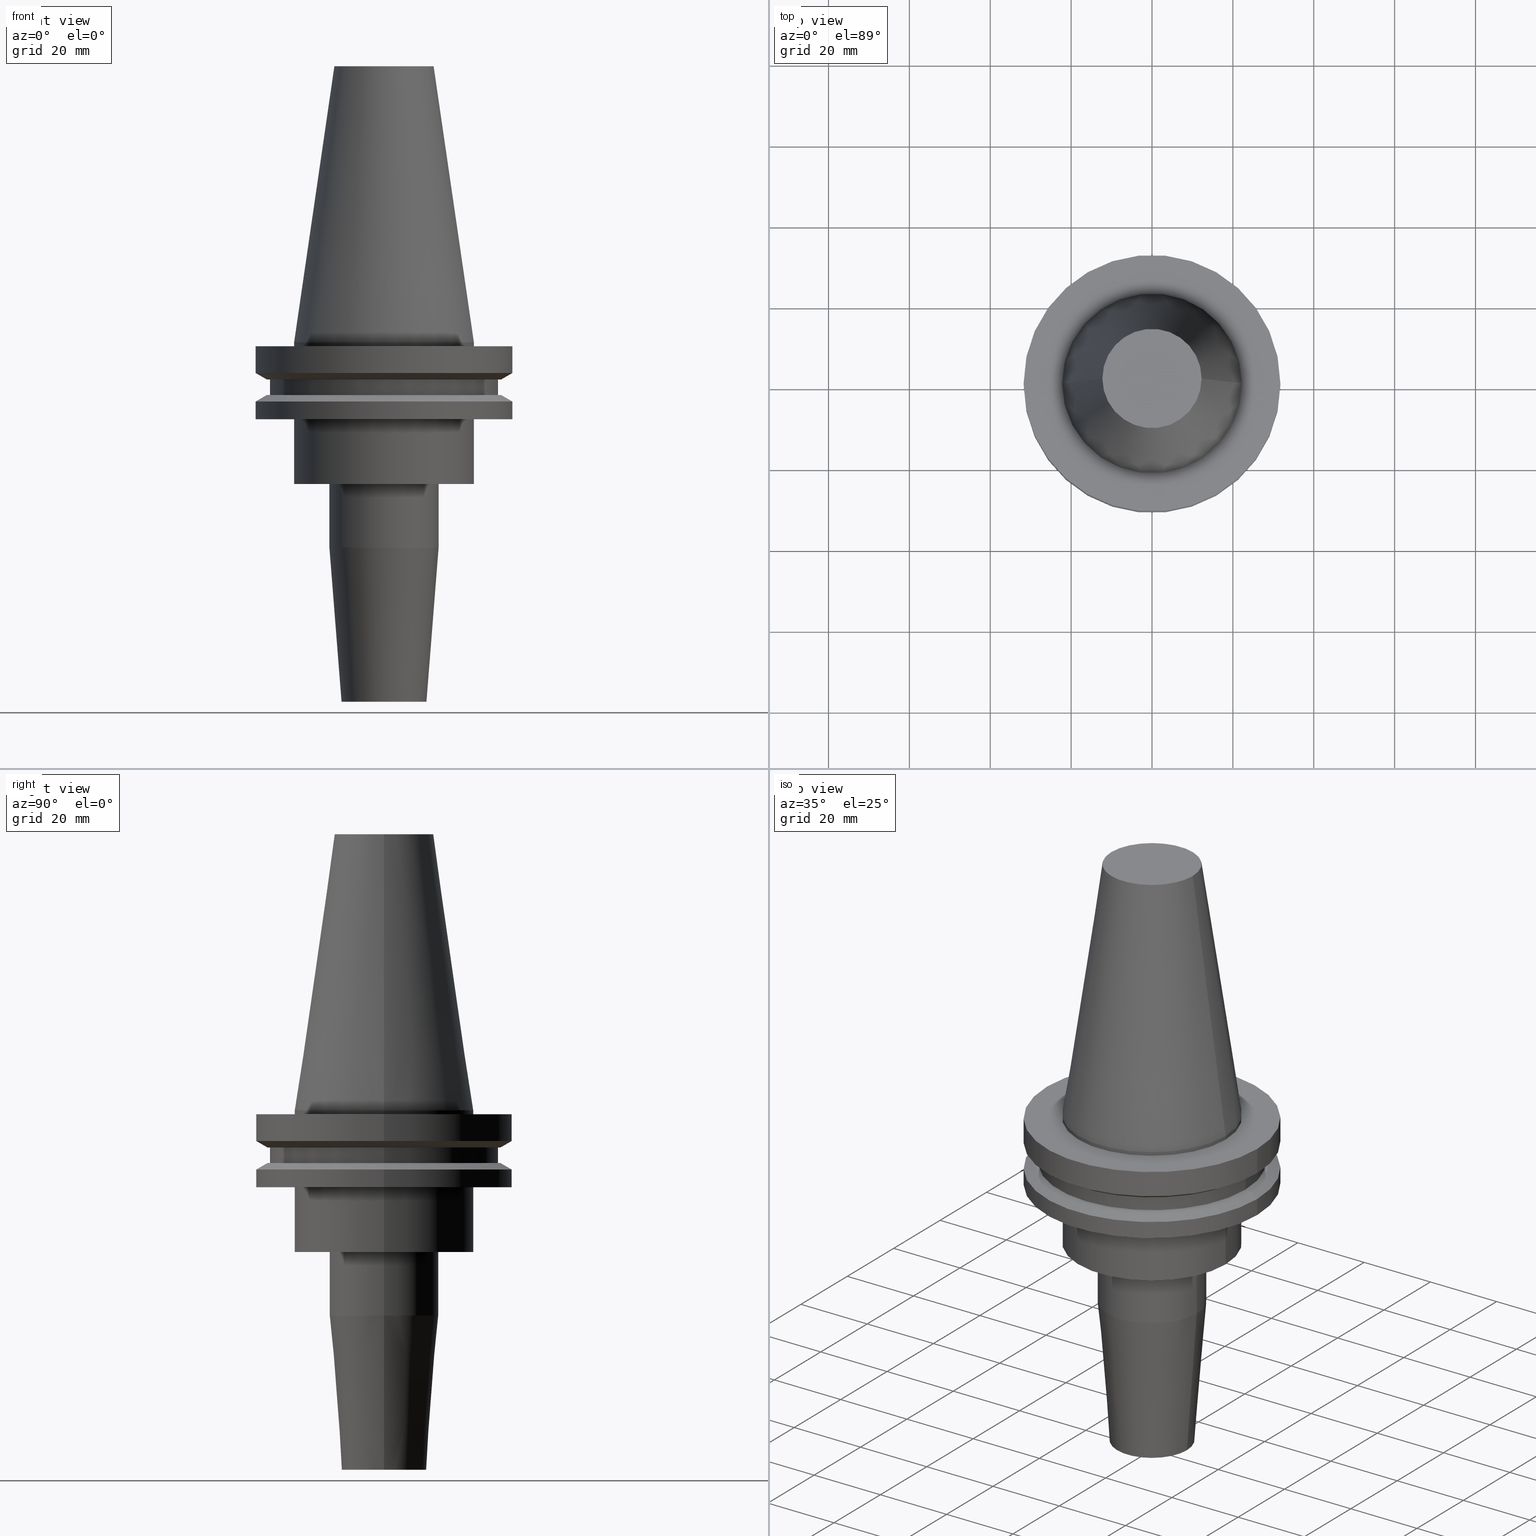
[diagram: canonical four-view strip — front | top / right | iso, engineering-drawing reading convention]
A machine part, canonical four-view strip (front | top / right | iso — engineering-drawing reading convention). The complete STEP part file that produces these views, byte-faithful:
ISO-10303-21;
HEADER;
FILE_DESCRIPTION (( 'STEP AP203' ),
    '1' );
FILE_NAME ('BCV40-SF_250-3_5.STEP',
    '2022-02-23T17:21:46',
    ( '' ),
    ( '' ),
    'SwSTEP 2.0',
    'SolidWorks 2021',
    '' );
FILE_SCHEMA (( 'CONFIG_CONTROL_DESIGN' ));
ENDSEC;

DATA;
#1 = ORIENTED_EDGE ( 'NONE', *, *, #406, .F. ) ;
#2 = CIRCLE ( 'NONE', #480, 31.74999999999999289 ) ;
#3 = FACE_OUTER_BOUND ( 'NONE', #302, .T. ) ;
#4 = VECTOR ( 'NONE', #473, 1000.000000000000000 ) ;
#5 = LINE ( 'NONE', #719, #621 ) ;
#6 = CIRCLE ( 'NONE', #649, 31.75000000000000000 ) ;
#7 = CC_DESIGN_APPROVAL ( #830, ( #119 ) ) ;
#8 = ORIENTED_EDGE ( 'NONE', *, *, #726, .T. ) ;
#9 = EDGE_CURVE ( 'NONE', #198, #100, #775, .T. ) ;
#10 = DESIGN_CONTEXT ( 'detailed design', #204, 'design' ) ;
#11 = DIRECTION ( 'NONE',  ( -0.000000000000000000, -0.000000000000000000, 1.000000000000000000 ) ) ;
#12 = PLANE ( 'NONE',  #467 ) ;
#13 = ORIENTED_EDGE ( 'NONE', *, *, #509, .T. ) ;
#14 = APPROVAL ( #566, 'UNSPECIFIED' ) ;
#15 = CARTESIAN_POINT ( 'NONE',  ( 0.000000000000000000, 0.000000000000000000, -14.65472339340266572 ) ) ;
#16 = FACE_OUTER_BOUND ( 'NONE', #99, .T. ) ;
#17 = EDGE_LOOP ( 'NONE', ( #146, #526 ) ) ;
#18 = FACE_OUTER_BOUND ( 'NONE', #283, .T. ) ;
#19 = CARTESIAN_POINT ( 'NONE',  ( 31.75000000000000000, 0.000000000000000000, 68.25000000000000000 ) ) ;
#20 = AXIS2_PLACEMENT_3D ( 'NONE', #525, #653, #197 ) ;
#21 = VERTEX_POINT ( 'NONE', #378 ) ;
#22 = CIRCLE ( 'NONE', #122, 28.97919780457008088 ) ;
#23 = CARTESIAN_POINT ( 'NONE',  ( 0.000000000000000000, 0.000000000000000000, 0.000000000000000000 ) ) ;
#24 = CARTESIAN_POINT ( 'NONE',  ( -31.75000000000000000, 3.888253587292846476E-15, -1.000000000000000888 ) ) ;
#25 = DIRECTION ( 'NONE',  ( 1.000000000000000000, 0.000000000000000000, 0.000000000000000000 ) ) ;
#26 = ADVANCED_FACE ( 'NONE', ( #695 ), #299, .T. ) ;
#27 = EDGE_LOOP ( 'NONE', ( #629, #836, #784, #162 ) ) ;
#28 = LINE ( 'NONE', #807, #347 ) ;
#29 = ORIENTED_EDGE ( 'NONE', *, *, #353, .F. ) ;
#30 = CYLINDRICAL_SURFACE ( 'NONE', #523, 3.174999999999999378 ) ;
#31 = DIRECTION ( 'NONE',  ( -0.000000000000000000, -0.000000000000000000, 1.000000000000000000 ) ) ;
#32 = VERTEX_POINT ( 'NONE', #560 ) ;
#33 = AXIS2_PLACEMENT_3D ( 'NONE', #455, #645, #322 ) ;
#34 = ADVANCED_FACE ( 'NONE', ( #308, #234 ), #753, .F. ) ;
#35 = CONICAL_SURFACE ( 'NONE', #321, 10.50000000000000000, 0.07853981633973655674 ) ;
#36 = LINE ( 'NONE', #90, #134 ) ;
#37 = DIRECTION ( 'NONE',  ( 1.000000000000000000, 0.000000000000000000, 0.000000000000000000 ) ) ;
#38 = VERTEX_POINT ( 'NONE', #168 ) ;
#39 = CARTESIAN_POINT ( 'NONE',  ( 0.000000000000000000, 31.74999999999999289, -19.04999999999999716 ) ) ;
#40 = VERTEX_POINT ( 'NONE', #770 ) ;
#41 = ORIENTED_EDGE ( 'NONE', *, *, #9, .T. ) ;
#42 = CARTESIAN_POINT ( 'NONE',  ( -28.17999999999999972, 3.451054679997241634E-15, -9.204999999999991189 ) ) ;
#43 = EDGE_LOOP ( 'NONE', ( #435, #597, #394, #357 ) ) ;
#44 = CIRCLE ( 'NONE', #688, 3.175000000000000711 ) ;
#45 = DATE_TIME_ROLE ( 'classification_date' ) ;
#46 = CARTESIAN_POINT ( 'NONE',  ( 28.17999999999999972, 0.000000000000000000, -13.05499999999999794 ) ) ;
#47 = DIRECTION ( 'NONE',  ( 1.000000000000000000, 0.000000000000000000, 0.000000000000000000 ) ) ;
#48 = ADVANCED_FACE ( 'NONE', ( #434 ), #604, .F. ) ;
#49 = CARTESIAN_POINT ( 'NONE',  ( 0.000000000000000000, 0.000000000000000000, -35.04999999999999716 ) ) ;
#50 = DIRECTION ( 'NONE',  ( 0.000000000000000000, -0.000000000000000000, 1.000000000000000000 ) ) ;
#51 = CARTESIAN_POINT ( 'NONE',  ( -22.22500000000000142, 2.721777511104992849E-15, -1.000000000000000888 ) ) ;
#52 = DIRECTION ( 'NONE',  ( 1.000000000000000000, 0.000000000000000000, 0.000000000000000000 ) ) ;
#53 = ADVANCED_FACE ( 'NONE', ( #414 ), #678, .T. ) ;
#54 = AXIS2_PLACEMENT_3D ( 'NONE', #399, #409, #722 ) ;
#55 = CARTESIAN_POINT ( 'NONE',  ( 0.000000000000000000, 0.000000000000000000, -9.204999999999991189 ) ) ;
#56 = CIRCLE ( 'NONE', #192, 12.27178102086201150 ) ;
#57 = AXIS2_PLACEMENT_3D ( 'NONE', #806, #664, #144 ) ;
#58 = FACE_OUTER_BOUND ( 'NONE', #231, .T. ) ;
#59 = CC_DESIGN_APPROVAL ( #14, ( #363 ) ) ;
#60 = DIRECTION ( 'NONE',  ( 0.8660254037844389297, 0.000000000000000000, 0.4999999999999995004 ) ) ;
#61 = EDGE_CURVE ( 'NONE', #291, #235, #294, .T. ) ;
#62 = DIRECTION ( 'NONE',  ( -1.000000000000000000, 0.000000000000000000, -0.000000000000000000 ) ) ;
#63 = ADVANCED_FACE ( 'NONE', ( #588 ), #35, .T. ) ;
#64 = VERTEX_POINT ( 'NONE', #792 ) ;
#65 = DIRECTION ( 'NONE',  ( 0.000000000000000000, -0.000000000000000000, 1.000000000000000000 ) ) ;
#66 = DIRECTION ( 'NONE',  ( 0.000000000000000000, 0.000000000000000000, -1.000000000000000000 ) ) ;
#67 = EDGE_CURVE ( 'NONE', #540, #92, #5, .T. ) ;
#68 = ORIENTED_EDGE ( 'NONE', *, *, #377, .T. ) ;
#69 = LINE ( 'NONE', #458, #745 ) ;
#70 = CARTESIAN_POINT ( 'NONE',  ( -10.50000000000000000, 1.469576158976823947E-15, -88.89999999999999147 ) ) ;
#71 = EDGE_LOOP ( 'NONE', ( #659, #341, #583, #682 ) ) ;
#72 = DIRECTION ( 'NONE',  ( -0.000000000000000000, -0.000000000000000000, 1.000000000000000000 ) ) ;
#73 = ORIENTED_EDGE ( 'NONE', *, *, #78, .F. ) ;
#74 = CARTESIAN_POINT ( 'NONE',  ( 22.22500000000000142, 0.000000000000000000, -19.04999999999999716 ) ) ;
#75 = ORIENTED_EDGE ( 'NONE', *, *, #254, .T. ) ;
#76 = EDGE_LOOP ( 'NONE', ( #803, #600 ) ) ;
#77 = DIRECTION ( 'NONE',  ( 0.8660254037844387076, 1.060575238724906915E-16, -0.4999999999999998890 ) ) ;
#78 = EDGE_CURVE ( 'NONE', #21, #490, #82, .T. ) ;
#79 = CARTESIAN_POINT ( 'NONE',  ( 0.000000000000000000, 0.000000000000000000, 68.25000000000000000 ) ) ;
#80 = ORIENTED_EDGE ( 'NONE', *, *, #261, .F. ) ;
#81 = AXIS2_PLACEMENT_3D ( 'NONE', #307, #625, #297 ) ;
#82 = CIRCLE ( 'NONE', #211, 13.50000000000000000 ) ;
#83 = CARTESIAN_POINT ( 'NONE',  ( 0.000000000000000000, 0.000000000000000000, -35.04999999999999716 ) ) ;
#84 = CARTESIAN_POINT ( 'NONE',  ( 31.75000000000000000, 0.000000000000000000, -7.605276606597335842 ) ) ;
#85 = VERTEX_POINT ( 'NONE', #446 ) ;
#86 = FACE_BOUND ( 'NONE', #212, .T. ) ;
#87 = EDGE_LOOP ( 'NONE', ( #685, #474, #362, #596 ) ) ;
#88 = EDGE_CURVE ( 'NONE', #127, #235, #704, .T. ) ;
#89 = DIRECTION ( 'NONE',  ( -0.000000000000000000, -0.000000000000000000, 1.000000000000000000 ) ) ;
#90 = CARTESIAN_POINT ( 'NONE',  ( -22.22500000000000142, 0.000000000000000000, 0.000000000000000000 ) ) ;
#91 = VERTEX_POINT ( 'NONE', #387 ) ;
#92 = VERTEX_POINT ( 'NONE', #265 ) ;
#93 = PRODUCT_DEFINITION_FORMATION_WITH_SPECIFIED_SOURCE ( 'ANY', '', #668, .NOT_KNOWN. ) ;
#94 = DIRECTION ( 'NONE',  ( 1.000000000000000000, 0.000000000000000000, 0.000000000000000000 ) ) ;
#95 = ORIENTED_EDGE ( 'NONE', *, *, #406, .T. ) ;
#96 = ORIENTED_EDGE ( 'NONE', *, *, #734, .F. ) ;
#97 = DIRECTION ( 'NONE',  ( 1.000000000000000000, 0.000000000000000000, 0.000000000000000000 ) ) ;
#98 = DIRECTION ( 'NONE',  ( 1.000000000000000000, 0.000000000000000000, 0.000000000000000000 ) ) ;
#99 = EDGE_LOOP ( 'NONE', ( #809, #761, #195, #96 ) ) ;
#100 = VERTEX_POINT ( 'NONE', #510 ) ;
#101 = CYLINDRICAL_SURFACE ( 'NONE', #121, 22.22500000000000142 ) ;
#102 = ADVANCED_FACE ( 'NONE', ( #504 ), #364, .T. ) ;
#103 = ORIENTED_EDGE ( 'NONE', *, *, #78, .T. ) ;
#104 = CIRCLE ( 'NONE', #289, 28.17999999999999972 ) ;
#105 = DATE_AND_TIME ( #180, #432 ) ;
#106 = AXIS2_PLACEMENT_3D ( 'NONE', #442, #247, #502 ) ;
#107 = VECTOR ( 'NONE', #316, 1000.000000000000000 ) ;
#108 = CARTESIAN_POINT ( 'NONE',  ( 0.000000000000000000, 0.000000000000000000, 68.25000000000000000 ) ) ;
#109 = FACE_BOUND ( 'NONE', #839, .T. ) ;
#110 = DATE_AND_TIME ( #710, #209 ) ;
#111 = CARTESIAN_POINT ( 'NONE',  ( -22.22500000000000142, 2.721777511104992849E-15, 68.25000000000000000 ) ) ;
#112 = CARTESIAN_POINT ( 'NONE',  ( -12.27178102086201150, 0.000000000000000000, 68.25000000000000000 ) ) ;
#113 = ADVANCED_FACE ( 'NONE', ( #329 ), #731, .T. ) ;
#114 = CALENDAR_DATE ( 2022, 23, 2 ) ;
#115 = CARTESIAN_POINT ( 'NONE',  ( 13.50000000000000000, 0.000000000000000000, 0.000000000000000000 ) ) ;
#116 = DIRECTION ( 'NONE',  ( 1.000000000000000000, 0.000000000000000000, 0.000000000000000000 ) ) ;
#117 = EDGE_CURVE ( 'NONE', #487, #520, #252, .T. ) ;
#118 = DATE_AND_TIME ( #246, #553 ) ;
#119 = PRODUCT_DEFINITION ( 'UNKNOWN', '', #93, #10 ) ;
#120 = DIRECTION ( 'NONE',  ( 1.000000000000000000, 0.000000000000000000, 0.000000000000000000 ) ) ;
#121 = AXIS2_PLACEMENT_3D ( 'NONE', #686, #492, #759 ) ;
#122 = AXIS2_PLACEMENT_3D ( 'NONE', #541, #213, #524 ) ;
#123 = DIRECTION ( 'NONE',  ( 1.000000000000000000, 0.000000000000000000, 0.000000000000000000 ) ) ;
#124 = ORIENTED_EDGE ( 'NONE', *, *, #208, .F. ) ;
#125 = FACE_OUTER_BOUND ( 'NONE', #17, .T. ) ;
#126 = CARTESIAN_POINT ( 'NONE',  ( 0.000000000000000000, 0.000000000000000000, -88.89999999999999147 ) ) ;
#127 = VERTEX_POINT ( 'NONE', #460 ) ;
#128 = DIRECTION ( 'NONE',  ( -0.000000000000000000, -0.000000000000000000, 1.000000000000000000 ) ) ;
#129 = APPROVAL ( #374, 'UNSPECIFIED' ) ;
#130 = DIRECTION ( 'NONE',  ( 1.000000000000000000, 0.000000000000000000, 0.000000000000000000 ) ) ;
#131 = VERTEX_POINT ( 'NONE', #788 ) ;
#132 = FACE_OUTER_BOUND ( 'NONE', #71, .T. ) ;
#133 = AXIS2_PLACEMENT_3D ( 'NONE', #343, #529, #206 ) ;
#134 = VECTOR ( 'NONE', #819, 999.9999999999998863 ) ;
#135 = DIRECTION ( 'NONE',  ( -0.000000000000000000, -0.000000000000000000, 1.000000000000000000 ) ) ;
#136 = CIRCLE ( 'NONE', #606, 22.22499999999999787 ) ;
#137 = AXIS2_PLACEMENT_3D ( 'NONE', #634, #175, #47 ) ;
#138 = AXIS2_PLACEMENT_3D ( 'NONE', #642, #248, #396 ) ;
#139 = ORIENTED_EDGE ( 'NONE', *, *, #527, .T. ) ;
#140 = DIRECTION ( 'NONE',  ( 1.000000000000000000, 0.000000000000000000, 0.000000000000000000 ) ) ;
#141 = DIRECTION ( 'NONE',  ( 1.000000000000000000, 0.000000000000000000, 0.000000000000000000 ) ) ;
#142 = ORIENTED_EDGE ( 'NONE', *, *, #325, .T. ) ;
#143 = ADVANCED_FACE ( 'NONE', ( #182, #109 ), #638, .F. ) ;
#144 = DIRECTION ( 'NONE',  ( -1.000000000000000000, 0.000000000000000000, -0.000000000000000000 ) ) ;
#145 = DIRECTION ( 'NONE',  ( 0.07845909572783670016, 0.000000000000000000, 0.9969173337331286300 ) ) ;
#146 = ORIENTED_EDGE ( 'NONE', *, *, #298, .F. ) ;
#147 = DIRECTION ( 'NONE',  ( 1.000000000000000000, 0.000000000000000000, 0.000000000000000000 ) ) ;
#148 = DIRECTION ( 'NONE',  ( -0.000000000000000000, -0.000000000000000000, 1.000000000000000000 ) ) ;
#149 = AXIS2_PLACEMENT_3D ( 'NONE', #576, #852, #123 ) ;
#150 = FACE_OUTER_BOUND ( 'NONE', #558, .T. ) ;
#151 = EDGE_LOOP ( 'NONE', ( #624, #13, #142, #563 ) ) ;
#152 = CIRCLE ( 'NONE', #264, 22.22500000000000142 ) ;
#153 = CARTESIAN_POINT ( 'NONE',  ( -13.50000000000000000, 1.653273178848926867E-15, -35.04999999999999716 ) ) ;
#154 = EDGE_CURVE ( 'NONE', #727, #92, #630, .T. ) ;
#155 = EDGE_LOOP ( 'NONE', ( #68, #808, #740, #216 ) ) ;
#156 = DIRECTION ( 'NONE',  ( -0.07845909572783670016, 9.608468044709099686E-18, 0.9969173337331286300 ) ) ;
#157 = CC_DESIGN_DATE_AND_TIME_ASSIGNMENT ( #444, #45, ( #363 ) ) ;
#158 = ORIENTED_EDGE ( 'NONE', *, *, #538, .F. ) ;
#159 = APPLICATION_CONTEXT ( 'configuration controlled 3d designs of mechanical parts and assemblies' ) ;
#160 =( LENGTH_UNIT ( ) NAMED_UNIT ( * ) SI_UNIT ( .MILLI., .METRE. ) );
#161 = FACE_OUTER_BOUND ( 'NONE', #425, .T. ) ;
#162 = ORIENTED_EDGE ( 'NONE', *, *, #667, .F. ) ;
#163 = VERTEX_POINT ( 'NONE', #312 ) ;
#164 = VECTOR ( 'NONE', #135, 1000.000000000000000 ) ;
#165 = AXIS2_PLACEMENT_3D ( 'NONE', #311, #769, #191 ) ;
#166 = CC_DESIGN_SECURITY_CLASSIFICATION ( #363, ( #93 ) ) ;
#167 = DIRECTION ( 'NONE',  ( 0.000000000000000000, -0.000000000000000000, 1.000000000000000000 ) ) ;
#168 = CARTESIAN_POINT ( 'NONE',  ( 31.74999999999999289, 0.000000000000000000, -19.04999999999999716 ) ) ;
#169 = EDGE_LOOP ( 'NONE', ( #671, #539, #797, #245 ) ) ;
#170 = ADVANCED_FACE ( 'NONE', ( #512, #58 ), #713, .F. ) ;
#171 = CARTESIAN_POINT ( 'NONE',  ( 0.000000000000000000, 0.000000000000000000, 68.25000000000000000 ) ) ;
#172 = ORIENTED_EDGE ( 'NONE', *, *, #693, .T. ) ;
#173 = APPROVAL_DATE_TIME ( #105, #14 ) ;
#174 = PLANE ( 'NONE',  #534 ) ;
#175 = DIRECTION ( 'NONE',  ( -0.000000000000000000, -0.000000000000000000, 1.000000000000000000 ) ) ;
#176 = AXIS2_PLACEMENT_3D ( 'NONE', #108, #380, #841 ) ;
#177 = CYLINDRICAL_SURFACE ( 'NONE', #176, 22.22500000000000142 ) ;
#178 = ADVANCED_FACE ( 'NONE', ( #782 ), #585, .T. ) ;
#179 = DIRECTION ( 'NONE',  ( -0.000000000000000000, -0.000000000000000000, 1.000000000000000000 ) ) ;
#180 = CALENDAR_DATE ( 2022, 23, 2 ) ;
#181 = CARTESIAN_POINT ( 'NONE',  ( -31.75000000000000000, 3.888253587292846476E-15, 68.25000000000000000 ) ) ;
#182 = FACE_OUTER_BOUND ( 'NONE', #561, .T. ) ;
#183 = EDGE_CURVE ( 'NONE', #131, #235, #194, .T. ) ;
#184 = EDGE_CURVE ( 'NONE', #40, #85, #203, .T. ) ;
#185 = PERSON_AND_ORGANIZATION ( #620, #391 ) ;
#186 = LINE ( 'NONE', #115, #107 ) ;
#187 = DIRECTION ( 'NONE',  ( 1.000000000000000000, 0.000000000000000000, 0.000000000000000000 ) ) ;
#188 = VERTEX_POINT ( 'NONE', #112 ) ;
#189 = PERSON_AND_ORGANIZATION ( #620, #391 ) ;
#190 = AXIS2_PLACEMENT_3D ( 'NONE', #609, #670, #348 ) ;
#191 = DIRECTION ( 'NONE',  ( 1.000000000000000000, 0.000000000000000000, 0.000000000000000000 ) ) ;
#192 = AXIS2_PLACEMENT_3D ( 'NONE', #171, #826, #562 ) ;
#193 = AXIS2_PLACEMENT_3D ( 'NONE', #15, #196, #205 ) ;
#194 = LINE ( 'NONE', #842, #843 ) ;
#195 = ORIENTED_EDGE ( 'NONE', *, *, #154, .F. ) ;
#196 = DIRECTION ( 'NONE',  ( -0.000000000000000000, -0.000000000000000000, 1.000000000000000000 ) ) ;
#197 = DIRECTION ( 'NONE',  ( -1.000000000000000000, 0.000000000000000000, 0.000000000000000000 ) ) ;
#198 = VERTEX_POINT ( 'NONE', #456 ) ;
#199 = DIRECTION ( 'NONE',  ( -0.000000000000000000, -0.000000000000000000, 1.000000000000000000 ) ) ;
#200 = DIRECTION ( 'NONE',  ( 1.000000000000000000, 0.000000000000000000, 0.000000000000000000 ) ) ;
#201 = VERTEX_POINT ( 'NONE', #384 ) ;
#202 = ORIENTED_EDGE ( 'NONE', *, *, #614, .F. ) ;
#203 = CIRCLE ( 'NONE', #800, 3.175000000000000711 ) ;
#204 = APPLICATION_CONTEXT ( 'configuration controlled 3d designs of mechanical parts and assemblies' ) ;
#205 = DIRECTION ( 'NONE',  ( 1.000000000000000000, 0.000000000000000000, 0.000000000000000000 ) ) ;
#206 = DIRECTION ( 'NONE',  ( 1.000000000000000000, 0.000000000000000000, 0.000000000000000000 ) ) ;
#207 = CIRCLE ( 'NONE', #689, 22.22500000000000142 ) ;
#208 = EDGE_CURVE ( 'NONE', #131, #38, #2, .T. ) ;
#209 = LOCAL_TIME ( 11, 21, 46.00000000000000000, #388 ) ;
#210 = ORIENTED_EDGE ( 'NONE', *, *, #673, .F. ) ;
#211 = AXIS2_PLACEMENT_3D ( 'NONE', #657, #581, #855 ) ;
#212 = EDGE_LOOP ( 'NONE', ( #813, #172 ) ) ;
#213 = DIRECTION ( 'NONE',  ( -0.000000000000000000, -0.000000000000000000, 1.000000000000000000 ) ) ;
#214 = FACE_BOUND ( 'NONE', #431, .T. ) ;
#215 = ORIENTED_EDGE ( 'NONE', *, *, #9, .F. ) ;
#216 = ORIENTED_EDGE ( 'NONE', *, *, #325, .F. ) ;
#217 = CC_DESIGN_PERSON_AND_ORGANIZATION_ASSIGNMENT ( #189, #844, ( #93 ) ) ;
#218 = CARTESIAN_POINT ( 'NONE',  ( -3.174999999999999378, 3.888253587292845588E-16, 0.000000000000000000 ) ) ;
#219 = CARTESIAN_POINT ( 'NONE',  ( 28.17999999999999972, 0.000000000000000000, 68.25000000000000000 ) ) ;
#220 = ORIENTED_EDGE ( 'NONE', *, *, #353, .T. ) ;
#221 = EDGE_CURVE ( 'NONE', #64, #825, #478, .T. ) ;
#222 = DIRECTION ( 'NONE',  ( 1.000000000000000000, 0.000000000000000000, 0.000000000000000000 ) ) ;
#223 = VECTOR ( 'NONE', #156, 1000.000000000000000 ) ;
#224 = ORIENTED_EDGE ( 'NONE', *, *, #527, .F. ) ;
#225 = LOCAL_TIME ( 11, 21, 46.00000000000000000, #569 ) ;
#226 = PERSON_AND_ORGANIZATION ( #620, #391 ) ;
#227 = CC_DESIGN_PERSON_AND_ORGANIZATION_ASSIGNMENT ( #631, #777, ( #363 ) ) ;
#228 = FACE_OUTER_BOUND ( 'NONE', #793, .T. ) ;
#229 = ORIENTED_EDGE ( 'NONE', *, *, #315, .T. ) ;
#230 = DIRECTION ( 'NONE',  ( 1.000000000000000000, 0.000000000000000000, 0.000000000000000000 ) ) ;
#231 = EDGE_LOOP ( 'NONE', ( #816, #8 ) ) ;
#232 = EDGE_LOOP ( 'NONE', ( #692, #475, #805, #420 ) ) ;
#233 = CARTESIAN_POINT ( 'NONE',  ( 0.000000000000000000, 0.000000000000000000, -66.89999999999999147 ) ) ;
#234 = FACE_OUTER_BOUND ( 'NONE', #76, .T. ) ;
#235 = VERTEX_POINT ( 'NONE', #542 ) ;
#236 = EDGE_CURVE ( 'NONE', #487, #401, #796, .T. ) ;
#237 = VECTOR ( 'NONE', #433, 1000.000000000000000 ) ;
#238 = CIRCLE ( 'NONE', #618, 13.50000000000000000 ) ;
#239 = CIRCLE ( 'NONE', #536, 28.97919780457008088 ) ;
#240 = DIRECTION ( 'NONE',  ( 1.000000000000000000, 0.000000000000000000, 0.000000000000000000 ) ) ;
#241 = CARTESIAN_POINT ( 'NONE',  ( 0.000000000000000000, 10.50000000000000000, -88.89999999999999147 ) ) ;
#242 = ORIENTED_EDGE ( 'NONE', *, *, #768, .T. ) ;
#243 = DATE_TIME_ROLE ( 'creation_date' ) ;
#244 = DIRECTION ( 'NONE',  ( -1.000000000000000000, 0.000000000000000000, 0.000000000000000000 ) ) ;
#245 = ORIENTED_EDGE ( 'NONE', *, *, #795, .F. ) ;
#246 = CALENDAR_DATE ( 2022, 23, 2 ) ;
#247 = DIRECTION ( 'NONE',  ( -0.000000000000000000, -0.000000000000000000, 1.000000000000000000 ) ) ;
#248 = DIRECTION ( 'NONE',  ( -0.000000000000000000, -0.000000000000000000, 1.000000000000000000 ) ) ;
#249 = VECTOR ( 'NONE', #268, 1000.000000000000000 ) ;
#250 = AXIS2_PLACEMENT_3D ( 'NONE', #273, #674, #477 ) ;
#251 = CARTESIAN_POINT ( 'NONE',  ( 22.22500000000000142, 2.721777511104992849E-15, 0.000000000000000000 ) ) ;
#252 = CIRCLE ( 'NONE', #149, 28.17999999999999972 ) ;
#253 = DIRECTION ( 'NONE',  ( -0.000000000000000000, -0.000000000000000000, 1.000000000000000000 ) ) ;
#254 = EDGE_CURVE ( 'NONE', #336, #64, #662, .T. ) ;
#255 = LINE ( 'NONE', #251, #774 ) ;
#256 = DIRECTION ( 'NONE',  ( -0.000000000000000000, -0.000000000000000000, 1.000000000000000000 ) ) ;
#257 = ORIENTED_EDGE ( 'NONE', *, *, #426, .T. ) ;
#258 = APPROVAL_ROLE ( '' ) ;
#259 = CARTESIAN_POINT ( 'NONE',  ( 0.000000000000000000, 0.000000000000000000, 0.000000000000000000 ) ) ;
#260 = DIRECTION ( 'NONE',  ( -0.000000000000000000, -0.000000000000000000, 1.000000000000000000 ) ) ;
#261 = EDGE_CURVE ( 'NONE', #540, #516, #519, .T. ) ;
#262 = ORIENTED_EDGE ( 'NONE', *, *, #746, .F. ) ;
#263 = FACE_OUTER_BOUND ( 'NONE', #87, .T. ) ;
#264 = AXIS2_PLACEMENT_3D ( 'NONE', #408, #148, #669 ) ;
#265 = CARTESIAN_POINT ( 'NONE',  ( -22.22500000000000142, 0.000000000000000000, 0.000000000000000000 ) ) ;
#266 = ORIENTED_EDGE ( 'NONE', *, *, #582, .T. ) ;
#267 = DIRECTION ( 'NONE',  ( 1.000000000000000000, 0.000000000000000000, 0.000000000000000000 ) ) ;
#268 = DIRECTION ( 'NONE',  ( -0.000000000000000000, -0.000000000000000000, 1.000000000000000000 ) ) ;
#269 = VERTEX_POINT ( 'NONE', #84 ) ;
#270 = CARTESIAN_POINT ( 'NONE',  ( 0.000000000000000000, 0.000000000000000000, 68.25000000000000000 ) ) ;
#271 = CARTESIAN_POINT ( 'NONE',  ( -28.17999999999999972, 3.451054679997241634E-15, 68.25000000000000000 ) ) ;
#272 = EDGE_LOOP ( 'NONE', ( #495, #658, #220, #262 ) ) ;
#273 = CARTESIAN_POINT ( 'NONE',  ( 0.000000000000000000, 0.000000000000000000, -9.205000000000005400 ) ) ;
#274 = ADVANCED_FACE ( 'NONE', ( #681 ), #589, .T. ) ;
#275 = AXIS2_PLACEMENT_3D ( 'NONE', #765, #834, #424 ) ;
#276 = DIRECTION ( 'NONE',  ( 1.000000000000000000, 0.000000000000000000, 0.000000000000000000 ) ) ;
#277 = AXIS2_PLACEMENT_3D ( 'NONE', #403, #611, #97 ) ;
#278 = EDGE_CURVE ( 'NONE', #489, #100, #464, .T. ) ;
#279 = EDGE_LOOP ( 'NONE', ( #698, #546, #73, #750 ) ) ;
#280 = DIRECTION ( 'NONE',  ( -0.000000000000000000, -0.000000000000000000, 1.000000000000000000 ) ) ;
#281 = CYLINDRICAL_SURFACE ( 'NONE', #847, 28.17999999999999972 ) ;
#282 = CARTESIAN_POINT ( 'NONE',  ( -28.97919780457008088, 0.000000000000000000, -13.05499999999999794 ) ) ;
#283 = EDGE_LOOP ( 'NONE', ( #720, #340, #514, #29 ) ) ;
#284 = CARTESIAN_POINT ( 'NONE',  ( 28.97919780457007732, 0.000000000000000000, -9.205000000000005400 ) ) ;
#285 = ORIENTED_EDGE ( 'NONE', *, *, #61, .T. ) ;
#286 = ADVANCED_FACE ( 'NONE', ( #150 ), #339, .T. ) ;
#287 = CARTESIAN_POINT ( 'NONE',  ( 22.22500000000000142, 0.000000000000000000, -1.000000000000000888 ) ) ;
#288 = AXIS2_PLACEMENT_3D ( 'NONE', #743, #733, #200 ) ;
#289 = AXIS2_PLACEMENT_3D ( 'NONE', #619, #31, #552 ) ;
#290 = VECTOR ( 'NONE', #641, 1000.000000000000000 ) ;
#291 = VERTEX_POINT ( 'NONE', #282 ) ;
#292 = CARTESIAN_POINT ( 'NONE',  ( 0.000000000000000000, 0.000000000000000000, -13.05499999999999794 ) ) ;
#293 = CARTESIAN_POINT ( 'NONE',  ( -28.17999999999999972, 3.451054679997241634E-15, -13.05499999999999794 ) ) ;
#294 = LINE ( 'NONE', #381, #650 ) ;
#295 = ORIENTED_EDGE ( 'NONE', *, *, #513, .F. ) ;
#296 = CARTESIAN_POINT ( 'NONE',  ( 12.27178102086201150, 2.112318622904291439E-15, 68.25000000000000000 ) ) ;
#297 = DIRECTION ( 'NONE',  ( 1.000000000000000000, 0.000000000000000000, 0.000000000000000000 ) ) ;
#298 = EDGE_CURVE ( 'NONE', #201, #723, #319, .T. ) ;
#299 = CYLINDRICAL_SURFACE ( 'NONE', #137, 31.75000000000000000 ) ;
#300 = ORIENTED_EDGE ( 'NONE', *, *, #746, .T. ) ;
#301 = PLANE ( 'NONE',  #712 ) ;
#302 = EDGE_LOOP ( 'NONE', ( #229, #466 ) ) ;
#303 = AXIS2_PLACEMENT_3D ( 'NONE', #732, #346, #267 ) ;
#304 = AXIS2_PLACEMENT_3D ( 'NONE', #23, #280, #147 ) ;
#305 =( GEOMETRIC_REPRESENTATION_CONTEXT ( 3 ) GLOBAL_UNCERTAINTY_ASSIGNED_CONTEXT ( ( #810 ) ) GLOBAL_UNIT_ASSIGNED_CONTEXT ( ( #160, #369, #821 ) ) REPRESENTATION_CONTEXT ( 'NONE', 'WORKASPACE' ) );
#306 = PERSON_AND_ORGANIZATION ( #620, #391 ) ;
#307 = CARTESIAN_POINT ( 'NONE',  ( 0.000000000000000000, 0.000000000000000000, -1.000000000000000888 ) ) ;
#308 = FACE_BOUND ( 'NONE', #368, .T. ) ;
#309 = EDGE_CURVE ( 'NONE', #91, #715, #771, .T. ) ;
#310 = APPROVAL_DATE_TIME ( #110, #129 ) ;
#311 = CARTESIAN_POINT ( 'NONE',  ( 0.000000000000000000, 0.000000000000000000, -19.04999999999999716 ) ) ;
#312 = CARTESIAN_POINT ( 'NONE',  ( 28.97919780457008088, 3.718590885307660666E-15, -13.05499999999999794 ) ) ;
#313 = ADVANCED_FACE ( 'NONE', ( #16 ), #412, .T. ) ;
#314 = PERSON_AND_ORGANIZATION_ROLE ( 'design_owner' ) ;
#315 = EDGE_CURVE ( 'NONE', #188, #829, #575, .T. ) ;
#316 = DIRECTION ( 'NONE',  ( -0.000000000000000000, -0.000000000000000000, 1.000000000000000000 ) ) ;
#317 = CARTESIAN_POINT ( 'NONE',  ( 0.000000000000000000, 0.000000000000000000, -14.65472339340266572 ) ) ;
#318 = AXIS2_PLACEMENT_3D ( 'NONE', #518, #256, #116 ) ;
#319 = CIRCLE ( 'NONE', #54, 22.22499999999999787 ) ;
#320 = DATE_AND_TIME ( #114, #225 ) ;
#321 = AXIS2_PLACEMENT_3D ( 'NONE', #126, #179, #52 ) ;
#322 = DIRECTION ( 'NONE',  ( 1.000000000000000000, 0.000000000000000000, 0.000000000000000000 ) ) ;
#323 = DIRECTION ( 'NONE',  ( -0.8660254037844387076, 0.000000000000000000, -0.4999999999999998890 ) ) ;
#324 = LINE ( 'NONE', #181, #591 ) ;
#325 = EDGE_CURVE ( 'NONE', #269, #91, #612, .T. ) ;
#326 = DIRECTION ( 'NONE',  ( -0.000000000000000000, -0.000000000000000000, 1.000000000000000000 ) ) ;
#327 = VERTEX_POINT ( 'NONE', #70 ) ;
#328 = DIRECTION ( 'NONE',  ( -0.000000000000000000, -0.000000000000000000, 1.000000000000000000 ) ) ;
#329 = FACE_OUTER_BOUND ( 'NONE', #232, .T. ) ;
#330 = ORIENTED_EDGE ( 'NONE', *, *, #278, .T. ) ;
#331 = AXIS2_PLACEMENT_3D ( 'NONE', #749, #436, #694 ) ;
#332 = AXIS2_PLACEMENT_3D ( 'NONE', #680, #128, #398 ) ;
#333 = CARTESIAN_POINT ( 'NONE',  ( 22.22500000000000142, 0.000000000000000000, 68.25000000000000000 ) ) ;
#334 = DIRECTION ( 'NONE',  ( -0.000000000000000000, -0.000000000000000000, 1.000000000000000000 ) ) ;
#335 = ORIENTED_EDGE ( 'NONE', *, *, #762, .F. ) ;
#336 = VERTEX_POINT ( 'NONE', #284 ) ;
#337 = EDGE_CURVE ( 'NONE', #198, #490, #28, .T. ) ;
#338 = DIRECTION ( 'NONE',  ( -0.000000000000000000, -0.000000000000000000, 1.000000000000000000 ) ) ;
#339 = CYLINDRICAL_SURFACE ( 'NONE', #845, 22.22500000000000142 ) ;
#340 = ORIENTED_EDGE ( 'NONE', *, *, #183, .T. ) ;
#341 = ORIENTED_EDGE ( 'NONE', *, *, #762, .T. ) ;
#342 = DIRECTION ( 'NONE',  ( -0.000000000000000000, -0.000000000000000000, 1.000000000000000000 ) ) ;
#343 = CARTESIAN_POINT ( 'NONE',  ( 0.000000000000000000, 0.000000000000000000, -1.000000000000000888 ) ) ;
#344 = ORIENTED_EDGE ( 'NONE', *, *, #814, .T. ) ;
#345 = AXIS2_PLACEMENT_3D ( 'NONE', #647, #50, #187 ) ;
#346 = DIRECTION ( 'NONE',  ( -0.000000000000000000, -0.000000000000000000, 1.000000000000000000 ) ) ;
#347 = VECTOR ( 'NONE', #334, 1000.000000000000000 ) ;
#348 = DIRECTION ( 'NONE',  ( -1.000000000000000000, 0.000000000000000000, 0.000000000000000000 ) ) ;
#349 = APPROVAL_PERSON_ORGANIZATION ( #185, #830, #258 ) ;
#350 = ORIENTED_EDGE ( 'NONE', *, *, #736, .F. ) ;
#351 = DIRECTION ( 'NONE',  ( -0.000000000000000000, -0.000000000000000000, 1.000000000000000000 ) ) ;
#352 = DIRECTION ( 'NONE',  ( -0.000000000000000000, -0.000000000000000000, 1.000000000000000000 ) ) ;
#353 = EDGE_CURVE ( 'NONE', #38, #127, #545, .T. ) ;
#354 = ORIENTED_EDGE ( 'NONE', *, *, #795, .T. ) ;
#355 = MECHANICAL_CONTEXT ( 'NONE', #159, 'mechanical' ) ;
#356 = LINE ( 'NONE', #615, #223 ) ;
#357 = ORIENTED_EDGE ( 'NONE', *, *, #667, .T. ) ;
#358 = DIRECTION ( 'NONE',  ( -0.000000000000000000, -0.000000000000000000, 1.000000000000000000 ) ) ;
#359 = VECTOR ( 'NONE', #665, 1000.000000000000000 ) ;
#360 = CARTESIAN_POINT ( 'NONE',  ( 0.000000000000000000, 0.000000000000000000, 68.25000000000000000 ) ) ;
#361 = AXIS2_PLACEMENT_3D ( 'NONE', #259, #781, #637 ) ;
#362 = ORIENTED_EDGE ( 'NONE', *, *, #236, .T. ) ;
#363 = SECURITY_CLASSIFICATION ( '', '', #448 ) ;
#364 = CONICAL_SURFACE ( 'NONE', #623, 31.75000000000000000, 1.047197551196597853 ) ;
#365 = EDGE_CURVE ( 'NONE', #520, #437, #815, .T. ) ;
#366 = DIRECTION ( 'NONE',  ( -0.000000000000000000, -0.000000000000000000, 1.000000000000000000 ) ) ;
#367 = ORIENTED_EDGE ( 'NONE', *, *, #254, .F. ) ;
#368 = EDGE_LOOP ( 'NONE', ( #696, #80 ) ) ;
#369 =( NAMED_UNIT ( * ) PLANE_ANGLE_UNIT ( ) SI_UNIT ( $, .RADIAN. ) );
#370 = EDGE_CURVE ( 'NONE', #429, #32, #831, .T. ) ;
#371 = CARTESIAN_POINT ( 'NONE',  ( -3.174999999999998046, 3.888253587292845095E-16, -66.89999999999999147 ) ) ;
#372 = ADVANCED_FACE ( 'NONE', ( #595, #214 ), #12, .F. ) ;
#373 = ORIENTED_EDGE ( 'NONE', *, *, #184, .T. ) ;
#374 = APPROVAL_STATUS ( 'not_yet_approved' ) ;
#375 = DIRECTION ( 'NONE',  ( -0.000000000000000000, -0.000000000000000000, 1.000000000000000000 ) ) ;
#376 = AXIS2_PLACEMENT_3D ( 'NONE', #393, #848, #62 ) ;
#377 = EDGE_CURVE ( 'NONE', #269, #825, #605, .T. ) ;
#378 = CARTESIAN_POINT ( 'NONE',  ( 13.50000000000000000, 0.000000000000000000, -35.04999999999999716 ) ) ;
#379 = SHAPE_DEFINITION_REPRESENTATION ( #737, #547 ) ;
#380 = DIRECTION ( 'NONE',  ( -0.000000000000000000, -0.000000000000000000, 1.000000000000000000 ) ) ;
#381 = CARTESIAN_POINT ( 'NONE',  ( -31.75000000000000000, 0.000000000000000000, -14.65472339340266572 ) ) ;
#382 = CC_DESIGN_PERSON_AND_ORGANIZATION_ASSIGNMENT ( #226, #314, ( #668 ) ) ;
#383 = LINE ( 'NONE', #508, #402 ) ;
#384 = CARTESIAN_POINT ( 'NONE',  ( 22.22499999999999787, 0.000000000000000000, -35.04999999999999716 ) ) ;
#385 = APPROVAL_DATE_TIME ( #320, #830 ) ;
#386 = DIRECTION ( 'NONE',  ( 1.000000000000000000, 0.000000000000000000, 0.000000000000000000 ) ) ;
#387 = CARTESIAN_POINT ( 'NONE',  ( 31.75000000000000000, 0.000000000000000000, -1.000000000000000888 ) ) ;
#388 = COORDINATED_UNIVERSAL_TIME_OFFSET ( 6, 0, .BEHIND. ) ;
#389 = CIRCLE ( 'NONE', #106, 22.22500000000000142 ) ;
#390 = EDGE_CURVE ( 'NONE', #201, #790, #752, .T. ) ;
#391 = ORGANIZATION ( 'UNSPECIFIED', 'UNSPECIFIED', '' ) ;
#392 = PLANE ( 'NONE',  #728 ) ;
#393 = CARTESIAN_POINT ( 'NONE',  ( 0.000000000000000000, 28.17999999999999972, -13.05499999999999794 ) ) ;
#394 = ORIENTED_EDGE ( 'NONE', *, *, #491, .T. ) ;
#395 = DIRECTION ( 'NONE',  ( -0.000000000000000000, -0.000000000000000000, 1.000000000000000000 ) ) ;
#396 = DIRECTION ( 'NONE',  ( 1.000000000000000000, 0.000000000000000000, 0.000000000000000000 ) ) ;
#397 = ORIENTED_EDGE ( 'NONE', *, *, #763, .F. ) ;
#398 = DIRECTION ( 'NONE',  ( 1.000000000000000000, 0.000000000000000000, 0.000000000000000000 ) ) ;
#399 = CARTESIAN_POINT ( 'NONE',  ( 0.000000000000000000, 0.000000000000000000, -35.04999999999999716 ) ) ;
#400 = ADVANCED_FACE ( 'NONE', ( #161, #86 ), #301, .F. ) ;
#401 = VERTEX_POINT ( 'NONE', #559 ) ;
#402 = VECTOR ( 'NONE', #60, 1000.000000000000000 ) ;
#403 = CARTESIAN_POINT ( 'NONE',  ( 0.000000000000000000, 0.000000000000000000, -9.205000000000005400 ) ) ;
#404 = AXIS2_PLACEMENT_3D ( 'NONE', #626, #703, #766 ) ;
#405 = CARTESIAN_POINT ( 'NONE',  ( 0.000000000000000000, 0.000000000000000000, 68.25000000000000000 ) ) ;
#406 = EDGE_CURVE ( 'NONE', #489, #327, #679, .T. ) ;
#407 = ORIENTED_EDGE ( 'NONE', *, *, #298, .T. ) ;
#408 = CARTESIAN_POINT ( 'NONE',  ( 0.000000000000000000, 0.000000000000000000, -19.04999999999999716 ) ) ;
#409 = DIRECTION ( 'NONE',  ( -0.000000000000000000, -0.000000000000000000, 1.000000000000000000 ) ) ;
#410 = ORIENTED_EDGE ( 'NONE', *, *, #416, .T. ) ;
#411 = DIRECTION ( 'NONE',  ( 1.000000000000000000, 0.000000000000000000, 0.000000000000000000 ) ) ;
#412 = CYLINDRICAL_SURFACE ( 'NONE', #699, 22.22500000000000142 ) ;
#413 = ORIENTED_EDGE ( 'NONE', *, *, #693, .F. ) ;
#414 = FACE_OUTER_BOUND ( 'NONE', #151, .T. ) ;
#415 = CYLINDRICAL_SURFACE ( 'NONE', #332, 31.75000000000000000 ) ;
#416 = EDGE_CURVE ( 'NONE', #32, #429, #417, .T. ) ;
#417 = CIRCLE ( 'NONE', #787, 3.174999999999998046 ) ;
#418 = CARTESIAN_POINT ( 'NONE',  ( 0.000000000000000000, 0.000000000000000000, -1.000000000000000888 ) ) ;
#419 = VECTOR ( 'NONE', #77, 1000.000000000000000 ) ;
#420 = ORIENTED_EDGE ( 'NONE', *, *, #491, .F. ) ;
#421 = DIRECTION ( 'NONE',  ( 0.000000000000000000, 0.000000000000000000, 1.000000000000000000 ) ) ;
#422 = CARTESIAN_POINT ( 'NONE',  ( 0.000000000000000000, 0.000000000000000000, -7.605276606597335842 ) ) ;
#423 = ORIENTED_EDGE ( 'NONE', *, *, #370, .F. ) ;
#424 = DIRECTION ( 'NONE',  ( 1.000000000000000000, 0.000000000000000000, 0.000000000000000000 ) ) ;
#425 = EDGE_LOOP ( 'NONE', ( #202, #124 ) ) ;
#426 = EDGE_CURVE ( 'NONE', #85, #40, #44, .T. ) ;
#427 = CARTESIAN_POINT ( 'NONE',  ( 0.000000000000000000, 0.000000000000000000, -88.89999999999999147 ) ) ;
#428 = CIRCLE ( 'NONE', #81, 22.22500000000000142 ) ;
#429 = VERTEX_POINT ( 'NONE', #371 ) ;
#430 = CONICAL_SURFACE ( 'NONE', #758, 31.75000000000000000, 1.047197551196597853 ) ;
#431 = EDGE_LOOP ( 'NONE', ( #257, #373 ) ) ;
#432 = LOCAL_TIME ( 11, 21, 46.00000000000000000, #840 ) ;
#433 = DIRECTION ( 'NONE',  ( -0.000000000000000000, -0.000000000000000000, 1.000000000000000000 ) ) ;
#434 = FACE_OUTER_BOUND ( 'NONE', #169, .T. ) ;
#435 = ORIENTED_EDGE ( 'NONE', *, *, #548, .F. ) ;
#436 = DIRECTION ( 'NONE',  ( -0.000000000000000000, -0.000000000000000000, 1.000000000000000000 ) ) ;
#437 = VERTEX_POINT ( 'NONE', #42 ) ;
#438 = FACE_OUTER_BOUND ( 'NONE', #27, .T. ) ;
#439 = ADVANCED_FACE ( 'NONE', ( #628 ), #101, .T. ) ;
#440 = ORIENTED_EDGE ( 'NONE', *, *, #377, .F. ) ;
#441 = APPROVAL_STATUS ( 'not_yet_approved' ) ;
#442 = CARTESIAN_POINT ( 'NONE',  ( 0.000000000000000000, 0.000000000000000000, 0.000000000000000000 ) ) ;
#443 = DIRECTION ( 'NONE',  ( 1.000000000000000000, 0.000000000000000000, 0.000000000000000000 ) ) ;
#444 = DATE_AND_TIME ( #643, #849 ) ;
#445 = DIRECTION ( 'NONE',  ( -0.000000000000000000, -0.000000000000000000, 1.000000000000000000 ) ) ;
#446 = CARTESIAN_POINT ( 'NONE',  ( 3.175000000000000711, 0.000000000000000000, -88.89999999999999147 ) ) ;
#447 = EDGE_CURVE ( 'NONE', #327, #489, #817, .T. ) ;
#448 = SECURITY_CLASSIFICATION_LEVEL ( 'unclassified' ) ;
#449 = CARTESIAN_POINT ( 'NONE',  ( 0.000000000000000000, 0.000000000000000000, -14.65472339340266572 ) ) ;
#450 = DIRECTION ( 'NONE',  ( -0.000000000000000000, -0.000000000000000000, 1.000000000000000000 ) ) ;
#451 = CC_DESIGN_PERSON_AND_ORGANIZATION_ASSIGNMENT ( #572, #507, ( #93 ) ) ;
#452 = ORIENTED_EDGE ( 'NONE', *, *, #337, .F. ) ;
#453 = CIRCLE ( 'NONE', #483, 28.17999999999999972 ) ;
#454 = CC_DESIGN_APPROVAL ( #129, ( #93 ) ) ;
#455 = CARTESIAN_POINT ( 'NONE',  ( 0.000000000000000000, 0.000000000000000000, -9.205000000000005400 ) ) ;
#456 = CARTESIAN_POINT ( 'NONE',  ( -13.50000000000000000, 1.653273178848926867E-15, -50.78138579147185538 ) ) ;
#457 = EDGE_LOOP ( 'NONE', ( #666, #754 ) ) ;
#458 = CARTESIAN_POINT ( 'NONE',  ( 3.174999999999999378, 0.000000000000000000, 0.000000000000000000 ) ) ;
#459 = EDGE_CURVE ( 'NONE', #520, #487, #104, .T. ) ;
#460 = CARTESIAN_POINT ( 'NONE',  ( 31.75000000000000000, 0.000000000000000000, -14.65472339340266572 ) ) ;
#461 = ORIENTED_EDGE ( 'NONE', *, *, #447, .F. ) ;
#462 = DIRECTION ( 'NONE',  ( -0.000000000000000000, -0.000000000000000000, 1.000000000000000000 ) ) ;
#463 = EDGE_CURVE ( 'NONE', #516, #540, #428, .T. ) ;
#464 = LINE ( 'NONE', #470, #801 ) ;
#465 = ORIENTED_EDGE ( 'NONE', *, *, #416, .F. ) ;
#466 = ORIENTED_EDGE ( 'NONE', *, *, #476, .T. ) ;
#467 = AXIS2_PLACEMENT_3D ( 'NONE', #241, #167, #482 ) ;
#468 = CIRCLE ( 'NONE', #303, 13.50000000000000000 ) ;
#469 = DIRECTION ( 'NONE',  ( -0.000000000000000000, -0.000000000000000000, 1.000000000000000000 ) ) ;
#470 = CARTESIAN_POINT ( 'NONE',  ( 10.50000000000000000, 0.000000000000000000, -88.89999999999999147 ) ) ;
#471 = ORIENTED_EDGE ( 'NONE', *, *, #117, .T. ) ;
#472 = DIRECTION ( 'NONE',  ( -0.000000000000000000, -0.000000000000000000, 1.000000000000000000 ) ) ;
#473 = DIRECTION ( 'NONE',  ( -0.000000000000000000, -0.000000000000000000, 1.000000000000000000 ) ) ;
#474 = ORIENTED_EDGE ( 'NONE', *, *, #459, .T. ) ;
#475 = ORIENTED_EDGE ( 'NONE', *, *, #548, .T. ) ;
#476 = EDGE_CURVE ( 'NONE', #829, #188, #56, .T. ) ;
#477 = DIRECTION ( 'NONE',  ( 1.000000000000000000, 0.000000000000000000, 0.000000000000000000 ) ) ;
#478 = LINE ( 'NONE', #799, #359 ) ;
#479 = ORIENTED_EDGE ( 'NONE', *, *, #221, .T. ) ;
#480 = AXIS2_PLACEMENT_3D ( 'NONE', #779, #72, #141 ) ;
#481 = CARTESIAN_POINT ( 'NONE',  ( 0.000000000000000000, 0.000000000000000000, 0.000000000000000000 ) ) ;
#482 = DIRECTION ( 'NONE',  ( 1.000000000000000000, 0.000000000000000000, 0.000000000000000000 ) ) ;
#483 = AXIS2_PLACEMENT_3D ( 'NONE', #55, #500, #120 ) ;
#484 = ORIENTED_EDGE ( 'NONE', *, *, #61, .F. ) ;
#485 = CYLINDRICAL_SURFACE ( 'NONE', #701, 28.17999999999999972 ) ;
#486 = ADVANCED_FACE ( 'NONE', ( #747 ), #757, .T. ) ;
#487 = VERTEX_POINT ( 'NONE', #46 ) ;
#488 = CARTESIAN_POINT ( 'NONE',  ( 22.22500000000000142, 0.000000000000000000, 68.25000000000000000 ) ) ;
#489 = VERTEX_POINT ( 'NONE', #567 ) ;
#490 = VERTEX_POINT ( 'NONE', #153 ) ;
#491 = EDGE_CURVE ( 'NONE', #188, #92, #36, .T. ) ;
#492 = DIRECTION ( 'NONE',  ( -0.000000000000000000, -0.000000000000000000, 1.000000000000000000 ) ) ;
#493 = DIRECTION ( 'NONE',  ( -1.000000000000000000, 0.000000000000000000, -0.000000000000000000 ) ) ;
#494 = CONICAL_SURFACE ( 'NONE', #33, 28.97919780457007732, 1.047197551196598297 ) ;
#495 = ORIENTED_EDGE ( 'NONE', *, *, #183, .F. ) ;
#496 = AXIS2_PLACEMENT_3D ( 'NONE', #360, #622, #37 ) ;
#497 = DIRECTION ( 'NONE',  ( -0.000000000000000000, -0.000000000000000000, 1.000000000000000000 ) ) ;
#498 = ORIENTED_EDGE ( 'NONE', *, *, #608, .T. ) ;
#499 = PERSON_AND_ORGANIZATION ( #620, #391 ) ;
#500 = DIRECTION ( 'NONE',  ( -0.000000000000000000, -0.000000000000000000, 1.000000000000000000 ) ) ;
#501 = DIRECTION ( 'NONE',  ( 0.000000000000000000, 0.000000000000000000, -1.000000000000000000 ) ) ;
#502 = DIRECTION ( 'NONE',  ( 1.000000000000000000, 0.000000000000000000, 0.000000000000000000 ) ) ;
#503 = AXIS2_PLACEMENT_3D ( 'NONE', #571, #326, #709 ) ;
#504 = FACE_OUTER_BOUND ( 'NONE', #663, .T. ) ;
#505 = VECTOR ( 'NONE', #338, 1000.000000000000000 ) ;
#506 = AXIS2_PLACEMENT_3D ( 'NONE', #828, #501, #493 ) ;
#507 = PERSON_AND_ORGANIZATION_ROLE ( 'design_supplier' ) ;
#508 = CARTESIAN_POINT ( 'NONE',  ( 28.97919780457007732, 0.000000000000000000, -9.205000000000005400 ) ) ;
#509 = EDGE_CURVE ( 'NONE', #825, #269, #6, .T. ) ;
#510 = CARTESIAN_POINT ( 'NONE',  ( 13.50000000000000000, 0.000000000000000000, -50.78138579147185538 ) ) ;
#511 = FACE_OUTER_BOUND ( 'NONE', #554, .T. ) ;
#512 = FACE_BOUND ( 'NONE', #457, .T. ) ;
#513 = EDGE_CURVE ( 'NONE', #327, #198, #356, .T. ) ;
#514 = ORIENTED_EDGE ( 'NONE', *, *, #88, .F. ) ;
#515 = CC_DESIGN_DATE_AND_TIME_ASSIGNMENT ( #118, #243, ( #119 ) ) ;
#516 = VERTEX_POINT ( 'NONE', #287 ) ;
#517 = DIRECTION ( 'NONE',  ( 1.000000000000000000, 0.000000000000000000, 0.000000000000000000 ) ) ;
#518 = CARTESIAN_POINT ( 'NONE',  ( 0.000000000000000000, 0.000000000000000000, 0.000000000000000000 ) ) ;
#519 = CIRCLE ( 'NONE', #133, 22.22500000000000142 ) ;
#520 = VERTEX_POINT ( 'NONE', #293 ) ;
#521 = ADVANCED_FACE ( 'NONE', ( #228 ), #485, .T. ) ;
#522 = AXIS2_PLACEMENT_3D ( 'NONE', #742, #469, #140 ) ;
#523 = AXIS2_PLACEMENT_3D ( 'NONE', #550, #832, #764 ) ;
#524 = DIRECTION ( 'NONE',  ( 1.000000000000000000, 0.000000000000000000, 0.000000000000000000 ) ) ;
#525 = CARTESIAN_POINT ( 'NONE',  ( 0.000000000000000000, 0.000000000000000000, 0.000000000000000000 ) ) ;
#526 = ORIENTED_EDGE ( 'NONE', *, *, #608, .F. ) ;
#527 = EDGE_CURVE ( 'NONE', #401, #437, #453, .T. ) ;
#528 = CYLINDRICAL_SURFACE ( 'NONE', #522, 31.75000000000000000 ) ;
#529 = DIRECTION ( 'NONE',  ( -0.000000000000000000, -0.000000000000000000, 1.000000000000000000 ) ) ;
#530 = EDGE_LOOP ( 'NONE', ( #103, #592 ) ) ;
#531 = DIRECTION ( 'NONE',  ( -0.000000000000000000, -0.000000000000000000, 1.000000000000000000 ) ) ;
#532 = ORIENTED_EDGE ( 'NONE', *, *, #755, .F. ) ;
#533 = AXIS2_PLACEMENT_3D ( 'NONE', #79, #352, #130 ) ;
#534 = AXIS2_PLACEMENT_3D ( 'NONE', #655, #65, #570 ) ;
#535 = CARTESIAN_POINT ( 'NONE',  ( 0.000000000000000000, 0.000000000000000000, -19.04999999999999716 ) ) ;
#536 = AXIS2_PLACEMENT_3D ( 'NONE', #292, #89, #240 ) ;
#537 = CARTESIAN_POINT ( 'NONE',  ( 0.000000000000000000, 0.000000000000000000, -66.89999999999999147 ) ) ;
#538 = EDGE_CURVE ( 'NONE', #336, #269, #383, .T. ) ;
#539 = ORIENTED_EDGE ( 'NONE', *, *, #755, .T. ) ;
#540 = VERTEX_POINT ( 'NONE', #51 ) ;
#541 = CARTESIAN_POINT ( 'NONE',  ( 0.000000000000000000, 0.000000000000000000, -13.05499999999999794 ) ) ;
#542 = CARTESIAN_POINT ( 'NONE',  ( -31.75000000000000000, 3.888253587292846476E-15, -14.65472339340266572 ) ) ;
#543 = ORIENTED_EDGE ( 'NONE', *, *, #768, .F. ) ;
#544 = APPLICATION_PROTOCOL_DEFINITION ( 'international standard', 'config_control_design', 1994, #159 ) ;
#545 = LINE ( 'NONE', #19, #164 ) ;
#546 = ORIENTED_EDGE ( 'NONE', *, *, #337, .T. ) ;
#547 = ADVANCED_BREP_SHAPE_REPRESENTATION ( 'BCV40-SF_250-3_5', ( #640, #636 ), #305 ) ;
#548 = EDGE_CURVE ( 'NONE', #829, #727, #255, .T. ) ;
#549 = VECTOR ( 'NONE', #812, 1000.000000000000000 ) ;
#550 = CARTESIAN_POINT ( 'NONE',  ( 0.000000000000000000, 0.000000000000000000, 0.000000000000000000 ) ) ;
#551 = CIRCLE ( 'NONE', #165, 31.74999999999999289 ) ;
#552 = DIRECTION ( 'NONE',  ( 1.000000000000000000, 0.000000000000000000, 0.000000000000000000 ) ) ;
#553 = LOCAL_TIME ( 11, 21, 46.00000000000000000, #780 ) ;
#554 = EDGE_LOOP ( 'NONE', ( #452, #41, #266, #350 ) ) ;
#555 = PRODUCT_RELATED_PRODUCT_CATEGORY ( 'detail', '', ( #668 ) ) ;
#556 = CARTESIAN_POINT ( 'NONE',  ( 0.000000000000000000, 0.000000000000000000, -88.89999999999999147 ) ) ;
#557 = ORIENTED_EDGE ( 'NONE', *, *, #365, .T. ) ;
#558 = EDGE_LOOP ( 'NONE', ( #407, #716, #760, #627 ) ) ;
#559 = CARTESIAN_POINT ( 'NONE',  ( 28.17999999999999972, 0.000000000000000000, -9.204999999999991189 ) ) ;
#560 = CARTESIAN_POINT ( 'NONE',  ( 3.174999999999998046, 0.000000000000000000, -66.89999999999999147 ) ) ;
#561 = EDGE_LOOP ( 'NONE', ( #367, #335 ) ) ;
#562 = DIRECTION ( 'NONE',  ( 1.000000000000000000, 0.000000000000000000, 0.000000000000000000 ) ) ;
#563 = ORIENTED_EDGE ( 'NONE', *, *, #602, .F. ) ;
#564 = CIRCLE ( 'NONE', #250, 28.97919780457007732 ) ;
#565 = ADVANCED_FACE ( 'NONE', ( #778 ), #392, .F. ) ;
#566 = APPROVAL_STATUS ( 'not_yet_approved' ) ;
#567 = CARTESIAN_POINT ( 'NONE',  ( 10.50000000000000000, 0.000000000000000000, -88.89999999999999147 ) ) ;
#568 = EDGE_LOOP ( 'NONE', ( #465, #423 ) ) ;
#569 = COORDINATED_UNIVERSAL_TIME_OFFSET ( 6, 0, .BEHIND. ) ;
#570 = DIRECTION ( 'NONE',  ( 1.000000000000000000, 0.000000000000000000, 0.000000000000000000 ) ) ;
#571 = CARTESIAN_POINT ( 'NONE',  ( 0.000000000000000000, 0.000000000000000000, 0.000000000000000000 ) ) ;
#572 = PERSON_AND_ORGANIZATION ( #620, #391 ) ;
#573 = ADVANCED_FACE ( 'NONE', ( #511 ), #587, .T. ) ;
#574 = CARTESIAN_POINT ( 'NONE',  ( 0.000000000000000000, 3.174999999999998046, -66.89999999999999147 ) ) ;
#575 = CIRCLE ( 'NONE', #533, 12.27178102086201150 ) ;
#576 = CARTESIAN_POINT ( 'NONE',  ( 0.000000000000000000, 0.000000000000000000, -13.05499999999999794 ) ) ;
#577 = APPROVAL_PERSON_ORGANIZATION ( #306, #14, #837 ) ;
#578 = PERSON_AND_ORGANIZATION_ROLE ( 'creator' ) ;
#579 = DIRECTION ( 'NONE',  ( 1.000000000000000000, 0.000000000000000000, 0.000000000000000000 ) ) ;
#580 = EDGE_CURVE ( 'NONE', #825, #715, #324, .T. ) ;
#581 = DIRECTION ( 'NONE',  ( -0.000000000000000000, -0.000000000000000000, 1.000000000000000000 ) ) ;
#582 = EDGE_CURVE ( 'NONE', #100, #21, #186, .T. ) ;
#583 = ORIENTED_EDGE ( 'NONE', *, *, #538, .T. ) ;
#584 = DIRECTION ( 'NONE',  ( 0.000000000000000000, 0.000000000000000000, -1.000000000000000000 ) ) ;
#585 = CYLINDRICAL_SURFACE ( 'NONE', #503, 13.50000000000000000 ) ;
#586 = ORIENTED_EDGE ( 'NONE', *, *, #513, .T. ) ;
#587 = CYLINDRICAL_SURFACE ( 'NONE', #361, 13.50000000000000000 ) ;
#588 = FACE_OUTER_BOUND ( 'NONE', #610, .T. ) ;
#589 = CONICAL_SURFACE ( 'NONE', #190, 22.22500000000000142, 0.1448138465474119174 ) ;
#590 = ADVANCED_FACE ( 'NONE', ( #772 ), #430, .T. ) ;
#591 = VECTOR ( 'NONE', #445, 1000.000000000000000 ) ;
#592 = ORIENTED_EDGE ( 'NONE', *, *, #736, .T. ) ;
#593 = CIRCLE ( 'NONE', #818, 28.17999999999999972 ) ;
#594 = CARTESIAN_POINT ( 'NONE',  ( 31.75000000000000000, 3.888253587292846476E-15, -14.65472339340266572 ) ) ;
#595 = FACE_OUTER_BOUND ( 'NONE', #735, .T. ) ;
#596 = ORIENTED_EDGE ( 'NONE', *, *, #814, .F. ) ;
#597 = ORIENTED_EDGE ( 'NONE', *, *, #315, .F. ) ;
#598 = CARTESIAN_POINT ( 'NONE',  ( 22.22500000000000142, 2.721777511104992849E-15, 0.000000000000000000 ) ) ;
#599 = DIRECTION ( 'NONE',  ( -0.000000000000000000, -0.000000000000000000, 1.000000000000000000 ) ) ;
#600 = ORIENTED_EDGE ( 'NONE', *, *, #602, .T. ) ;
#601 = CARTESIAN_POINT ( 'NONE',  ( -22.22499999999999787, 2.721777511104992454E-15, -35.04999999999999716 ) ) ;
#602 = EDGE_CURVE ( 'NONE', #715, #91, #789, .T. ) ;
#603 = DIRECTION ( 'NONE',  ( 1.000000000000000000, 0.000000000000000000, 0.000000000000000000 ) ) ;
#604 = CYLINDRICAL_SURFACE ( 'NONE', #304, 3.174999999999999378 ) ;
#605 = CIRCLE ( 'NONE', #646, 31.75000000000000000 ) ;
#606 = AXIS2_PLACEMENT_3D ( 'NONE', #49, #395, #386 ) ;
#607 = DIRECTION ( 'NONE',  ( 1.000000000000000000, 0.000000000000000000, 0.000000000000000000 ) ) ;
#608 = EDGE_CURVE ( 'NONE', #723, #201, #136, .T. ) ;
#609 = CARTESIAN_POINT ( 'NONE',  ( 0.000000000000000000, 0.000000000000000000, 0.000000000000000000 ) ) ;
#610 = EDGE_LOOP ( 'NONE', ( #295, #616, #330, #215 ) ) ;
#611 = DIRECTION ( 'NONE',  ( -0.000000000000000000, -0.000000000000000000, 1.000000000000000000 ) ) ;
#612 = LINE ( 'NONE', #676, #4 ) ;
#613 = EDGE_LOOP ( 'NONE', ( #543, #729, #285, #300 ) ) ;
#614 = EDGE_CURVE ( 'NONE', #38, #131, #551, .T. ) ;
#615 = CARTESIAN_POINT ( 'NONE',  ( -10.50000000000000000, 1.285879139104720831E-15, -88.89999999999999147 ) ) ;
#616 = ORIENTED_EDGE ( 'NONE', *, *, #447, .T. ) ;
#617 = CARTESIAN_POINT ( 'NONE',  ( -31.75000000000000000, 3.888253587292846476E-15, -7.605276606597335842 ) ) ;
#618 = AXIS2_PLACEMENT_3D ( 'NONE', #83, #472, #411 ) ;
#619 = CARTESIAN_POINT ( 'NONE',  ( 0.000000000000000000, 0.000000000000000000, -13.05499999999999794 ) ) ;
#620 = PERSON ( 'UNSPECIFIED', 'UNSPECIFIED', 'UNSPECIFIED', ('UNSPECIFIED'), ('UNSPECIFIED'), ('UNSPECIFIED') ) ;
#621 = VECTOR ( 'NONE', #253, 1000.000000000000000 ) ;
#622 = DIRECTION ( 'NONE',  ( -0.000000000000000000, -0.000000000000000000, 1.000000000000000000 ) ) ;
#623 = AXIS2_PLACEMENT_3D ( 'NONE', #317, #66, #706 ) ;
#624 = ORIENTED_EDGE ( 'NONE', *, *, #580, .F. ) ;
#625 = DIRECTION ( 'NONE',  ( -0.000000000000000000, -0.000000000000000000, 1.000000000000000000 ) ) ;
#626 = CARTESIAN_POINT ( 'NONE',  ( 0.000000000000000000, 0.000000000000000000, -50.78138579147185538 ) ) ;
#627 = ORIENTED_EDGE ( 'NONE', *, *, #390, .F. ) ;
#628 = FACE_OUTER_BOUND ( 'NONE', #748, .T. ) ;
#629 = ORIENTED_EDGE ( 'NONE', *, *, #67, .F. ) ;
#630 = CIRCLE ( 'NONE', #318, 22.22500000000000142 ) ;
#631 = PERSON_AND_ORGANIZATION ( #620, #391 ) ;
#632 = AXIS2_PLACEMENT_3D ( 'NONE', #418, #725, #222 ) ;
#633 = DIRECTION ( 'NONE',  ( 1.000000000000000000, 0.000000000000000000, 0.000000000000000000 ) ) ;
#634 = CARTESIAN_POINT ( 'NONE',  ( 0.000000000000000000, 0.000000000000000000, 68.25000000000000000 ) ) ;
#635 = AXIS2_PLACEMENT_3D ( 'NONE', #711, #328, #517 ) ;
#636 = AXIS2_PLACEMENT_3D ( 'NONE', #481, #421, #683 ) ;
#637 = DIRECTION ( 'NONE',  ( 1.000000000000000000, 0.000000000000000000, 0.000000000000000000 ) ) ;
#638 = PLANE ( 'NONE',  #345 ) ;
#639 = ADVANCED_FACE ( 'NONE', ( #700 ), #494, .T. ) ;
#640 = MANIFOLD_SOLID_BREP ( 'SF', #804 ) ;
#641 = DIRECTION ( 'NONE',  ( -0.000000000000000000, -0.000000000000000000, 1.000000000000000000 ) ) ;
#642 = CARTESIAN_POINT ( 'NONE',  ( 0.000000000000000000, 0.000000000000000000, -14.65472339340266572 ) ) ;
#643 = CALENDAR_DATE ( 2022, 23, 2 ) ;
#644 = ADVANCED_FACE ( 'NONE', ( #718, #125 ), #174, .F. ) ;
#645 = DIRECTION ( 'NONE',  ( -0.000000000000000000, -0.000000000000000000, 1.000000000000000000 ) ) ;
#646 = AXIS2_PLACEMENT_3D ( 'NONE', #822, #366, #838 ) ;
#647 = CARTESIAN_POINT ( 'NONE',  ( 0.000000000000000000, 28.97919780457007732, -9.204999999999996518 ) ) ;
#648 = AXIS2_PLACEMENT_3D ( 'NONE', #427, #375, #633 ) ;
#649 = AXIS2_PLACEMENT_3D ( 'NONE', #422, #358, #684 ) ;
#650 = VECTOR ( 'NONE', #323, 1000.000000000000000 ) ;
#651 = COORDINATED_UNIVERSAL_TIME_OFFSET ( 6, 0, .BEHIND. ) ;
#652 = CARTESIAN_POINT ( 'NONE',  ( 0.000000000000000000, 0.000000000000000000, 68.25000000000000000 ) ) ;
#653 = DIRECTION ( 'NONE',  ( 0.000000000000000000, 0.000000000000000000, -1.000000000000000000 ) ) ;
#654 = ORIENTED_EDGE ( 'NONE', *, *, #278, .F. ) ;
#655 = CARTESIAN_POINT ( 'NONE',  ( 0.000000000000000000, 22.22499999999999787, -35.04999999999999716 ) ) ;
#656 = ADVANCED_FACE ( 'NONE', ( #438 ), #177, .T. ) ;
#657 = CARTESIAN_POINT ( 'NONE',  ( 0.000000000000000000, 0.000000000000000000, -35.04999999999999716 ) ) ;
#658 = ORIENTED_EDGE ( 'NONE', *, *, #208, .T. ) ;
#659 = ORIENTED_EDGE ( 'NONE', *, *, #221, .F. ) ;
#660 = CARTESIAN_POINT ( 'NONE',  ( 0.000000000000000000, 0.000000000000000000, -9.204999999999991189 ) ) ;
#661 = CARTESIAN_POINT ( 'NONE',  ( 0.000000000000000000, 0.000000000000000000, 68.25000000000000000 ) ) ;
#662 = CIRCLE ( 'NONE', #288, 28.97919780457007732 ) ;
#663 = EDGE_LOOP ( 'NONE', ( #672, #242, #820, #484 ) ) ;
#664 = DIRECTION ( 'NONE',  ( 0.000000000000000000, 0.000000000000000000, -1.000000000000000000 ) ) ;
#665 = DIRECTION ( 'NONE',  ( -0.8660254037844389297, 1.060575238724907285E-16, 0.4999999999999995004 ) ) ;
#666 = ORIENTED_EDGE ( 'NONE', *, *, #117, .F. ) ;
#667 = EDGE_CURVE ( 'NONE', #92, #727, #389, .T. ) ;
#668 = PRODUCT ( 'BCV40-SF_250-3_5', 'BCV40-SF_250-3_5', '', ( #355 ) ) ;
#669 = DIRECTION ( 'NONE',  ( 1.000000000000000000, 0.000000000000000000, 0.000000000000000000 ) ) ;
#670 = DIRECTION ( 'NONE',  ( 0.000000000000000000, 0.000000000000000000, -1.000000000000000000 ) ) ;
#671 = ORIENTED_EDGE ( 'NONE', *, *, #184, .F. ) ;
#672 = ORIENTED_EDGE ( 'NONE', *, *, #726, .F. ) ;
#673 = EDGE_CURVE ( 'NONE', #723, #687, #705, .T. ) ;
#674 = DIRECTION ( 'NONE',  ( -0.000000000000000000, -0.000000000000000000, 1.000000000000000000 ) ) ;
#675 = CC_DESIGN_PERSON_AND_ORGANIZATION_ASSIGNMENT ( #785, #578, ( #119 ) ) ;
#676 = CARTESIAN_POINT ( 'NONE',  ( 31.75000000000000000, 0.000000000000000000, 68.25000000000000000 ) ) ;
#677 = ORIENTED_EDGE ( 'NONE', *, *, #426, .F. ) ;
#678 = CYLINDRICAL_SURFACE ( 'NONE', #496, 31.75000000000000000 ) ;
#679 = CIRCLE ( 'NONE', #331, 10.50000000000000000 ) ;
#680 = CARTESIAN_POINT ( 'NONE',  ( 0.000000000000000000, 0.000000000000000000, 68.25000000000000000 ) ) ;
#681 = FACE_OUTER_BOUND ( 'NONE', #43, .T. ) ;
#682 = ORIENTED_EDGE ( 'NONE', *, *, #509, .F. ) ;
#683 = DIRECTION ( 'NONE',  ( 1.000000000000000000, 0.000000000000000000, 0.000000000000000000 ) ) ;
#684 = DIRECTION ( 'NONE',  ( 1.000000000000000000, 0.000000000000000000, 0.000000000000000000 ) ) ;
#685 = ORIENTED_EDGE ( 'NONE', *, *, #365, .F. ) ;
#686 = CARTESIAN_POINT ( 'NONE',  ( 0.000000000000000000, 0.000000000000000000, 68.25000000000000000 ) ) ;
#687 = VERTEX_POINT ( 'NONE', #846 ) ;
#688 = AXIS2_PLACEMENT_3D ( 'NONE', #556, #497, #230 ) ;
#689 = AXIS2_PLACEMENT_3D ( 'NONE', #535, #351, #607 ) ;
#690 = DIRECTION ( 'NONE',  ( 0.000000000000000000, -0.000000000000000000, 1.000000000000000000 ) ) ;
#691 = ORIENTED_EDGE ( 'NONE', *, *, #390, .T. ) ;
#692 = ORIENTED_EDGE ( 'NONE', *, *, #476, .F. ) ;
#693 = EDGE_CURVE ( 'NONE', #687, #790, #207, .T. ) ;
#694 = DIRECTION ( 'NONE',  ( 1.000000000000000000, 0.000000000000000000, 0.000000000000000000 ) ) ;
#695 = FACE_OUTER_BOUND ( 'NONE', #272, .T. ) ;
#696 = ORIENTED_EDGE ( 'NONE', *, *, #463, .F. ) ;
#697 = DIRECTION ( 'NONE',  ( -0.000000000000000000, -0.000000000000000000, 1.000000000000000000 ) ) ;
#698 = ORIENTED_EDGE ( 'NONE', *, *, #763, .T. ) ;
#699 = AXIS2_PLACEMENT_3D ( 'NONE', #405, #739, #603 ) ;
#700 = FACE_OUTER_BOUND ( 'NONE', #824, .T. ) ;
#701 = AXIS2_PLACEMENT_3D ( 'NONE', #652, #854, #579 ) ;
#702 = ADVANCED_FACE ( 'NONE', ( #3 ), #811, .F. ) ;
#703 = DIRECTION ( 'NONE',  ( -0.000000000000000000, -0.000000000000000000, 1.000000000000000000 ) ) ;
#704 = CIRCLE ( 'NONE', #138, 31.75000000000000000 ) ;
#705 = LINE ( 'NONE', #111, #290 ) ;
#706 = DIRECTION ( 'NONE',  ( -1.000000000000000000, 0.000000000000000000, 0.000000000000000000 ) ) ;
#707 = APPLICATION_PROTOCOL_DEFINITION ( 'international standard', 'config_control_design', 1994, #204 ) ;
#708 = DIRECTION ( 'NONE',  ( 1.000000000000000000, 0.000000000000000000, 0.000000000000000000 ) ) ;
#709 = DIRECTION ( 'NONE',  ( 1.000000000000000000, 0.000000000000000000, 0.000000000000000000 ) ) ;
#710 = CALENDAR_DATE ( 2022, 23, 2 ) ;
#711 = CARTESIAN_POINT ( 'NONE',  ( 0.000000000000000000, 0.000000000000000000, -1.000000000000000888 ) ) ;
#712 = AXIS2_PLACEMENT_3D ( 'NONE', #39, #690, #94 ) ;
#713 = PLANE ( 'NONE',  #376 ) ;
#714 = CIRCLE ( 'NONE', #193, 31.75000000000000000 ) ;
#715 = VERTEX_POINT ( 'NONE', #24 ) ;
#716 = ORIENTED_EDGE ( 'NONE', *, *, #673, .T. ) ;
#717 = ADVANCED_FACE ( 'NONE', ( #263 ), #281, .T. ) ;
#718 = FACE_BOUND ( 'NONE', #530, .T. ) ;
#719 = CARTESIAN_POINT ( 'NONE',  ( -22.22500000000000142, 2.721777511104992849E-15, 68.25000000000000000 ) ) ;
#720 = ORIENTED_EDGE ( 'NONE', *, *, #614, .T. ) ;
#721 = FACE_OUTER_BOUND ( 'NONE', #155, .T. ) ;
#722 = DIRECTION ( 'NONE',  ( 1.000000000000000000, 0.000000000000000000, 0.000000000000000000 ) ) ;
#723 = VERTEX_POINT ( 'NONE', #601 ) ;
#724 = DIRECTION ( 'NONE',  ( 1.000000000000000000, 0.000000000000000000, 0.000000000000000000 ) ) ;
#725 = DIRECTION ( 'NONE',  ( -0.000000000000000000, -0.000000000000000000, 1.000000000000000000 ) ) ;
#726 = EDGE_CURVE ( 'NONE', #163, #291, #22, .T. ) ;
#727 = VERTEX_POINT ( 'NONE', #598 ) ;
#728 = AXIS2_PLACEMENT_3D ( 'NONE', #574, #786, #708 ) ;
#729 = ORIENTED_EDGE ( 'NONE', *, *, #851, .F. ) ;
#730 = CONICAL_SURFACE ( 'NONE', #277, 28.97919780457007732, 1.047197551196598297 ) ;
#731 = CONICAL_SURFACE ( 'NONE', #20, 22.22500000000000142, 0.1448138465474119174 ) ;
#732 = CARTESIAN_POINT ( 'NONE',  ( 0.000000000000000000, 0.000000000000000000, -50.78138579147185538 ) ) ;
#733 = DIRECTION ( 'NONE',  ( -0.000000000000000000, -0.000000000000000000, 1.000000000000000000 ) ) ;
#734 = EDGE_CURVE ( 'NONE', #516, #727, #791, .T. ) ;
#735 = EDGE_LOOP ( 'NONE', ( #1, #461 ) ) ;
#736 = EDGE_CURVE ( 'NONE', #490, #21, #238, .T. ) ;
#737 = PRODUCT_DEFINITION_SHAPE ( 'NONE', 'NONE',  #119 ) ;
#738 = LINE ( 'NONE', #594, #419 ) ;
#739 = DIRECTION ( 'NONE',  ( -0.000000000000000000, -0.000000000000000000, 1.000000000000000000 ) ) ;
#740 = ORIENTED_EDGE ( 'NONE', *, *, #309, .F. ) ;
#741 = ORIENTED_EDGE ( 'NONE', *, *, #236, .F. ) ;
#742 = CARTESIAN_POINT ( 'NONE',  ( 0.000000000000000000, 0.000000000000000000, 68.25000000000000000 ) ) ;
#743 = CARTESIAN_POINT ( 'NONE',  ( 0.000000000000000000, 0.000000000000000000, -9.205000000000005400 ) ) ;
#744 = EDGE_LOOP ( 'NONE', ( #95, #586, #397, #654 ) ) ;
#745 = VECTOR ( 'NONE', #342, 1000.000000000000000 ) ;
#746 = EDGE_CURVE ( 'NONE', #235, #127, #714, .T. ) ;
#747 = FACE_OUTER_BOUND ( 'NONE', #744, .T. ) ;
#748 = EDGE_LOOP ( 'NONE', ( #210, #498, #691, #413 ) ) ;
#749 = CARTESIAN_POINT ( 'NONE',  ( 0.000000000000000000, 0.000000000000000000, -88.89999999999999147 ) ) ;
#750 = ORIENTED_EDGE ( 'NONE', *, *, #582, .F. ) ;
#751 = FACE_OUTER_BOUND ( 'NONE', #853, .T. ) ;
#752 = LINE ( 'NONE', #488, #237 ) ;
#753 = PLANE ( 'NONE',  #506 ) ;
#754 = ORIENTED_EDGE ( 'NONE', *, *, #459, .F. ) ;
#755 = EDGE_CURVE ( 'NONE', #40, #429, #798, .T. ) ;
#756 = AXIS2_PLACEMENT_3D ( 'NONE', #537, #531, #276 ) ;
#757 = CONICAL_SURFACE ( 'NONE', #648, 10.50000000000000000, 0.07853981633973655674 ) ;
#758 = AXIS2_PLACEMENT_3D ( 'NONE', #449, #584, #244 ) ;
#759 = DIRECTION ( 'NONE',  ( 1.000000000000000000, 0.000000000000000000, 0.000000000000000000 ) ) ;
#760 = ORIENTED_EDGE ( 'NONE', *, *, #783, .F. ) ;
#761 = ORIENTED_EDGE ( 'NONE', *, *, #67, .T. ) ;
#762 = EDGE_CURVE ( 'NONE', #64, #336, #564, .T. ) ;
#763 = EDGE_CURVE ( 'NONE', #100, #198, #468, .T. ) ;
#764 = DIRECTION ( 'NONE',  ( 1.000000000000000000, 0.000000000000000000, 0.000000000000000000 ) ) ;
#765 = CARTESIAN_POINT ( 'NONE',  ( 0.000000000000000000, 0.000000000000000000, -88.89999999999999147 ) ) ;
#766 = DIRECTION ( 'NONE',  ( 1.000000000000000000, 0.000000000000000000, 0.000000000000000000 ) ) ;
#767 = APPROVAL_ROLE ( '' ) ;
#768 = EDGE_CURVE ( 'NONE', #163, #127, #738, .T. ) ;
#769 = DIRECTION ( 'NONE',  ( -0.000000000000000000, -0.000000000000000000, 1.000000000000000000 ) ) ;
#770 = CARTESIAN_POINT ( 'NONE',  ( -3.175000000000000711, 3.888253587292847561E-16, -88.89999999999999147 ) ) ;
#771 = CIRCLE ( 'NONE', #632, 31.75000000000000000 ) ;
#772 = FACE_OUTER_BOUND ( 'NONE', #613, .T. ) ;
#773 = ADVANCED_FACE ( 'NONE', ( #18 ), #528, .T. ) ;
#774 = VECTOR ( 'NONE', #850, 999.9999999999998863 ) ;
#775 = CIRCLE ( 'NONE', #404, 13.50000000000000000 ) ;
#776 = CARTESIAN_POINT ( 'NONE',  ( 0.000000000000000000, 0.000000000000000000, -88.89999999999999147 ) ) ;
#777 = PERSON_AND_ORGANIZATION_ROLE ( 'classification_officer' ) ;
#778 = FACE_OUTER_BOUND ( 'NONE', #568, .T. ) ;
#779 = CARTESIAN_POINT ( 'NONE',  ( 0.000000000000000000, 0.000000000000000000, -19.04999999999999716 ) ) ;
#780 = COORDINATED_UNIVERSAL_TIME_OFFSET ( 6, 0, .BEHIND. ) ;
#781 = DIRECTION ( 'NONE',  ( -0.000000000000000000, -0.000000000000000000, 1.000000000000000000 ) ) ;
#782 = FACE_OUTER_BOUND ( 'NONE', #279, .T. ) ;
#783 = EDGE_CURVE ( 'NONE', #790, #687, #152, .T. ) ;
#784 = ORIENTED_EDGE ( 'NONE', *, *, #734, .T. ) ;
#785 = PERSON_AND_ORGANIZATION ( #620, #391 ) ;
#786 = DIRECTION ( 'NONE',  ( 0.000000000000000000, -0.000000000000000000, 1.000000000000000000 ) ) ;
#787 = AXIS2_PLACEMENT_3D ( 'NONE', #233, #697, #98 ) ;
#788 = CARTESIAN_POINT ( 'NONE',  ( -31.74999999999999289, 3.888253587292845687E-15, -19.04999999999999716 ) ) ;
#789 = CIRCLE ( 'NONE', #635, 31.75000000000000000 ) ;
#790 = VERTEX_POINT ( 'NONE', #74 ) ;
#791 = LINE ( 'NONE', #333, #505 ) ;
#792 = CARTESIAN_POINT ( 'NONE',  ( -28.97919780457007732, 3.718590885307660666E-15, -9.205000000000005400 ) ) ;
#793 = EDGE_LOOP ( 'NONE', ( #471, #557, #224, #741 ) ) ;
#794 = DIRECTION ( 'NONE',  ( 1.000000000000000000, 0.000000000000000000, 0.000000000000000000 ) ) ;
#795 = EDGE_CURVE ( 'NONE', #85, #32, #69, .T. ) ;
#796 = LINE ( 'NONE', #219, #549 ) ;
#797 = ORIENTED_EDGE ( 'NONE', *, *, #370, .T. ) ;
#798 = LINE ( 'NONE', #218, #833 ) ;
#799 = CARTESIAN_POINT ( 'NONE',  ( -28.97919780457007732, 3.548928183322474856E-15, -9.205000000000005400 ) ) ;
#800 = AXIS2_PLACEMENT_3D ( 'NONE', #776, #260, #443 ) ;
#801 = VECTOR ( 'NONE', #145, 1000.000000000000000 ) ;
#802 = ADVANCED_FACE ( 'NONE', ( #721 ), #415, .T. ) ;
#803 = ORIENTED_EDGE ( 'NONE', *, *, #309, .T. ) ;
#804 = CLOSED_SHELL ( 'NONE', ( #48, #486, #178, #313, #802, #639, #521, #102, #773, #286, #113, #274, #702, #644, #439, #400, #26, #590, #170, #717, #143, #823, #53, #34, #656, #573, #63, #372, #827, #565 ) ) ;
#805 = ORIENTED_EDGE ( 'NONE', *, *, #154, .T. ) ;
#806 = CARTESIAN_POINT ( 'NONE',  ( 0.000000000000000000, 12.27178102086201150, 68.25000000000000000 ) ) ;
#807 = CARTESIAN_POINT ( 'NONE',  ( -13.50000000000000000, 1.653273178848926867E-15, 0.000000000000000000 ) ) ;
#808 = ORIENTED_EDGE ( 'NONE', *, *, #580, .T. ) ;
#809 = ORIENTED_EDGE ( 'NONE', *, *, #463, .T. ) ;
#810 = UNCERTAINTY_MEASURE_WITH_UNIT (LENGTH_MEASURE( 1.000000000000000082E-05 ), #160, 'distance_accuracy_value', 'NONE');
#811 = PLANE ( 'NONE',  #57 ) ;
#812 = DIRECTION ( 'NONE',  ( -0.000000000000000000, -0.000000000000000000, 1.000000000000000000 ) ) ;
#813 = ORIENTED_EDGE ( 'NONE', *, *, #783, .T. ) ;
#814 = EDGE_CURVE ( 'NONE', #437, #401, #593, .T. ) ;
#815 = LINE ( 'NONE', #271, #249 ) ;
#816 = ORIENTED_EDGE ( 'NONE', *, *, #851, .T. ) ;
#817 = CIRCLE ( 'NONE', #275, 10.50000000000000000 ) ;
#818 = AXIS2_PLACEMENT_3D ( 'NONE', #660, #462, #724 ) ;
#819 = DIRECTION ( 'NONE',  ( -0.1443082272672999711, 0.000000000000000000, -0.9895327864921755756 ) ) ;
#820 = ORIENTED_EDGE ( 'NONE', *, *, #88, .T. ) ;
#821 =( NAMED_UNIT ( * ) SI_UNIT ( $, .STERADIAN. ) SOLID_ANGLE_UNIT ( ) );
#822 = CARTESIAN_POINT ( 'NONE',  ( 0.000000000000000000, 0.000000000000000000, -7.605276606597335842 ) ) ;
#823 = ADVANCED_FACE ( 'NONE', ( #132 ), #730, .T. ) ;
#824 = EDGE_LOOP ( 'NONE', ( #75, #479, #440, #158 ) ) ;
#825 = VERTEX_POINT ( 'NONE', #617 ) ;
#826 = DIRECTION ( 'NONE',  ( -0.000000000000000000, -0.000000000000000000, 1.000000000000000000 ) ) ;
#827 = ADVANCED_FACE ( 'NONE', ( #751 ), #30, .F. ) ;
#828 = CARTESIAN_POINT ( 'NONE',  ( 0.000000000000000000, 31.75000000000000000, -0.9999999999999995559 ) ) ;
#829 = VERTEX_POINT ( 'NONE', #296 ) ;
#830 = APPROVAL ( #441, 'UNSPECIFIED' ) ;
#831 = CIRCLE ( 'NONE', #756, 3.174999999999998046 ) ;
#832 = DIRECTION ( 'NONE',  ( -0.000000000000000000, -0.000000000000000000, 1.000000000000000000 ) ) ;
#833 = VECTOR ( 'NONE', #199, 1000.000000000000000 ) ;
#834 = DIRECTION ( 'NONE',  ( -0.000000000000000000, -0.000000000000000000, 1.000000000000000000 ) ) ;
#835 = APPROVAL_PERSON_ORGANIZATION ( #499, #129, #767 ) ;
#836 = ORIENTED_EDGE ( 'NONE', *, *, #261, .T. ) ;
#837 = APPROVAL_ROLE ( '' ) ;
#838 = DIRECTION ( 'NONE',  ( 1.000000000000000000, 0.000000000000000000, 0.000000000000000000 ) ) ;
#839 = EDGE_LOOP ( 'NONE', ( #139, #344 ) ) ;
#840 = COORDINATED_UNIVERSAL_TIME_OFFSET ( 6, 0, .BEHIND. ) ;
#841 = DIRECTION ( 'NONE',  ( 1.000000000000000000, 0.000000000000000000, 0.000000000000000000 ) ) ;
#842 = CARTESIAN_POINT ( 'NONE',  ( -31.75000000000000000, 3.888253587292846476E-15, 68.25000000000000000 ) ) ;
#843 = VECTOR ( 'NONE', #450, 1000.000000000000000 ) ;
#844 = PERSON_AND_ORGANIZATION_ROLE ( 'creator' ) ;
#845 = AXIS2_PLACEMENT_3D ( 'NONE', #661, #599, #25 ) ;
#846 = CARTESIAN_POINT ( 'NONE',  ( -22.22500000000000142, 2.721777511104992849E-15, -19.04999999999999716 ) ) ;
#847 = AXIS2_PLACEMENT_3D ( 'NONE', #270, #11, #794 ) ;
#848 = DIRECTION ( 'NONE',  ( 0.000000000000000000, 0.000000000000000000, -1.000000000000000000 ) ) ;
#849 = LOCAL_TIME ( 11, 21, 46.00000000000000000, #651 ) ;
#850 = DIRECTION ( 'NONE',  ( 0.1443082272672999711, 1.767266086135276757E-17, -0.9895327864921755756 ) ) ;
#851 = EDGE_CURVE ( 'NONE', #291, #163, #239, .T. ) ;
#852 = DIRECTION ( 'NONE',  ( -0.000000000000000000, -0.000000000000000000, 1.000000000000000000 ) ) ;
#853 = EDGE_LOOP ( 'NONE', ( #532, #677, #354, #410 ) ) ;
#854 = DIRECTION ( 'NONE',  ( -0.000000000000000000, -0.000000000000000000, 1.000000000000000000 ) ) ;
#855 = DIRECTION ( 'NONE',  ( 1.000000000000000000, 0.000000000000000000, 0.000000000000000000 ) ) ;
ENDSEC;
END-ISO-10303-21;
